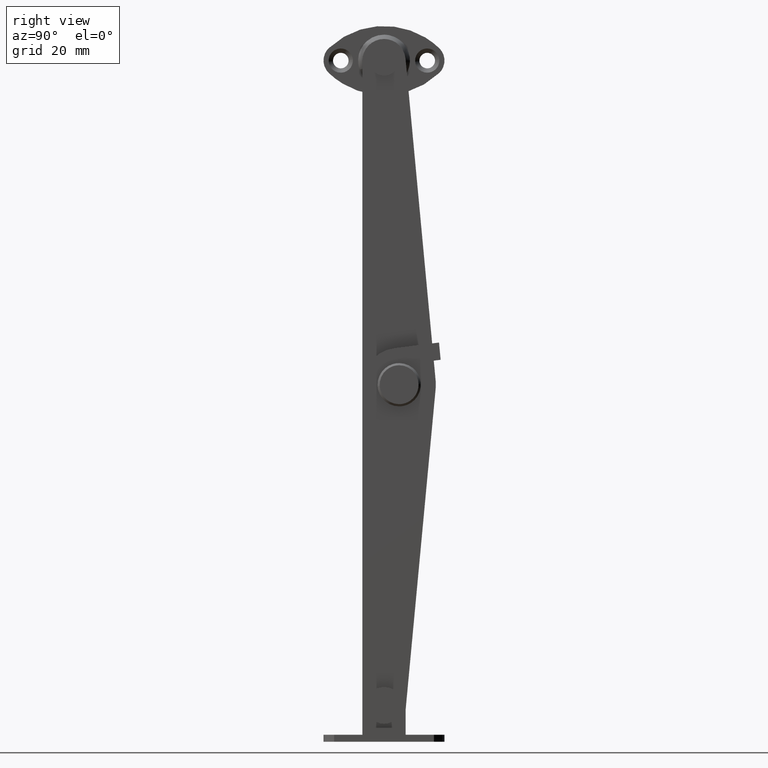
[diagram: clean part render]
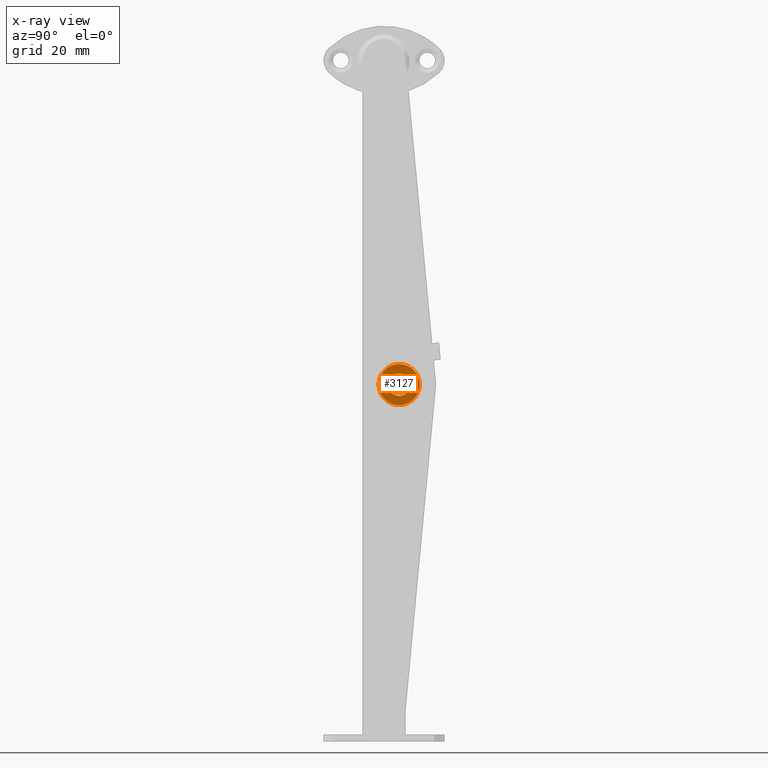
[diagram: x-ray — body ghosted, one internal face saturated and labeled with its STEP entity id]
A machine part, right view, then the same camera in x-ray: the body is ghosted and one INTERNAL B-rep face — a face not visible from any outside direction — is saturated and labeled: STEP entity #3127.
In plain terms, the highlighted face is a freeform B-spline surface patch.
Its self-contained STEP definition (entity closure, byte-faithful):
#2370=CARTESIAN_POINT('',(3.599991000000080,-2.581824766095675,-0.306889030717961));
#2371=VERTEX_POINT('',#2370);
#2372=CARTESIAN_POINT('',(3.599991000000080,0.0,2.600000000000000));
#2373=VERTEX_POINT('',#2372);
#2374=CARTESIAN_POINT('',(3.599991000000081,-2.581824766095676,-0.306889030717961));
#2375=CARTESIAN_POINT('',(3.599991000000080,-2.600000000000000,-0.153982731923245));
#2376=CARTESIAN_POINT('',(3.599991000000080,-2.600000000000000,0.0));
#2377=CARTESIAN_POINT('',(3.599991000000080,-2.600000000000001,2.600000000000001));
#2378=CARTESIAN_POINT('',(3.599991000000080,0.0,2.600000000000000));
#2386=(BOUNDED_CURVE()B_SPLINE_CURVE(2,(#2374,#2375,#2376,#2377,#2378),.UNSPECIFIED.,.F.,.U.)B_SPLINE_CURVE_WITH_KNOTS((3,2,3),(0.229562470817380,0.250000000000000,0.500000000000000),.UNSPECIFIED.)CURVE()GEOMETRIC_REPRESENTATION_ITEM()RATIONAL_B_SPLINE_CURVE((0.956026748899178,0.976055945172434,1.0,0.707106781186548,1.0))REPRESENTATION_ITEM(''));
#2387=EDGE_CURVE('',#2371,#2373,#2386,.T.);
#2428=CARTESIAN_POINT('',(3.599991000000080,2.595150475889329,0.158726202913659));
#2429=VERTEX_POINT('',#2428);
#2435=CARTESIAN_POINT('',(3.599991000000080,0.0,2.600000000000000));
#2436=CARTESIAN_POINT('',(3.599991000000080,2.445835773722483,2.599999999999999));
#2437=CARTESIAN_POINT('',(3.599991000000080,2.595150475889329,0.158726202913659));
#2445=(BOUNDED_CURVE()B_SPLINE_CURVE(2,(#2435,#2436,#2437),.UNSPECIFIED.,.F.,.U.)B_SPLINE_CURVE_WITH_KNOTS((3,3),(0.500000000000000,0.739332962225609),.UNSPECIFIED.)CURVE()GEOMETRIC_REPRESENTATION_ITEM()RATIONAL_B_SPLINE_CURVE((1.0,0.719603993302332,0.976072041638141))REPRESENTATION_ITEM(''));
#2446=EDGE_CURVE('',#2373,#2429,#2445,.T.);
#2469=CARTESIAN_POINT('',(3.599991000000080,0.0,-2.600000000000000));
#2470=VERTEX_POINT('',#2469);
#2471=CARTESIAN_POINT('',(3.599991000000080,0.0,-2.600000000000000));
#2472=CARTESIAN_POINT('',(3.599991000000080,-2.309253730345034,-2.600000000000001));
#2473=CARTESIAN_POINT('',(3.599991000000080,-2.581824766095675,-0.306889030717961));
#2481=(BOUNDED_CURVE()B_SPLINE_CURVE(2,(#2471,#2472,#2473),.UNSPECIFIED.,.F.,.U.)B_SPLINE_CURVE_WITH_KNOTS((3,3),(0.0,0.229562470817380),.UNSPECIFIED.)CURVE()GEOMETRIC_REPRESENTATION_ITEM()RATIONAL_B_SPLINE_CURVE((1.0,0.731050836014113,0.956026748899177))REPRESENTATION_ITEM(''));
#2482=EDGE_CURVE('',#2470,#2371,#2481,.T.);
#2484=CARTESIAN_POINT('',(3.599991000000080,2.595150475889329,0.158726202913659));
#2485=CARTESIAN_POINT('',(3.599991000000079,2.600000000000000,0.079437184699707));
#2486=CARTESIAN_POINT('',(3.599991000000080,2.600000000000000,0.0));
#2487=CARTESIAN_POINT('',(3.599991000000080,2.600000000000001,-2.600000000000001));
#2488=CARTESIAN_POINT('',(3.599991000000080,0.0,-2.600000000000000));
#2496=(BOUNDED_CURVE()B_SPLINE_CURVE(2,(#2484,#2485,#2486,#2487,#2488),.UNSPECIFIED.,.F.,.U.)B_SPLINE_CURVE_WITH_KNOTS((3,2,3),(0.739332962225608,0.750000000000000,1.0),.UNSPECIFIED.)CURVE()GEOMETRIC_REPRESENTATION_ITEM()RATIONAL_B_SPLINE_CURVE((0.976072041638139,0.987502787884215,1.0,0.707106781186548,1.0))REPRESENTATION_ITEM(''));
#2497=EDGE_CURVE('',#2429,#2470,#2496,.T.);
#2972=CARTESIAN_POINT('',(3.599990999683962,3.289195168131739,-3.454156196772931));
#2973=VERTEX_POINT('',#2972);
#2987=CARTESIAN_POINT('',(3.599991000000100,0.0,-4.769695954297490));
#2988=VERTEX_POINT('',#2987);
#2989=CARTESIAN_POINT('',(3.599990999683962,3.289195168131739,-3.454156196772930));
#2990=CARTESIAN_POINT('',(3.599991000000100,1.907677876644792,-4.769695954297490));
#2991=CARTESIAN_POINT('',(3.599991000000100,0.0,-4.769695954297490));
#2999=(BOUNDED_CURVE()B_SPLINE_CURVE(2,(#2989,#2990,#2991),.UNSPECIFIED.,.F.,.U.)B_SPLINE_CURVE_WITH_KNOTS((3,3),(0.378690594327381,0.500000000000000),.UNSPECIFIED.)CURVE()GEOMETRIC_REPRESENTATION_ITEM()RATIONAL_B_SPLINE_CURVE((0.853681049733423,0.857877190800799,1.0))REPRESENTATION_ITEM(''));
#3000=EDGE_CURVE('',#2973,#2988,#2999,.T.);
#3002=CARTESIAN_POINT('',(3.599991000000100,0.0,4.769695954297490));
#3003=VERTEX_POINT('',#3002);
#3004=CARTESIAN_POINT('',(3.599991000000100,0.0,-4.769695954297490));
#3005=CARTESIAN_POINT('',(3.599991000000100,-4.769695954297491,-4.769695954297491));
#3006=CARTESIAN_POINT('',(3.599991000000100,-4.769695954297490,0.0));
#3007=CARTESIAN_POINT('',(3.599991000000100,-4.769695954297491,4.769695954297491));
#3008=CARTESIAN_POINT('',(3.599991000000100,0.0,4.769695954297490));
#3016=(BOUNDED_CURVE()B_SPLINE_CURVE(2,(#3004,#3005,#3006,#3007,#3008),.UNSPECIFIED.,.F.,.U.)B_SPLINE_CURVE_WITH_KNOTS((3,2,3),(0.500000000000000,0.750000000000000,1.0),.UNSPECIFIED.)CURVE()GEOMETRIC_REPRESENTATION_ITEM()RATIONAL_B_SPLINE_CURVE((1.0,0.707106781186548,1.0,0.707106781186548,1.0))REPRESENTATION_ITEM(''));
#3017=EDGE_CURVE('',#2988,#3003,#3016,.T.);
#3019=CARTESIAN_POINT('',(3.599990999665994,3.636618992743273,3.086260230361549));
#3020=VERTEX_POINT('',#3019);
#3021=CARTESIAN_POINT('',(3.599991000000100,0.0,4.769695954297490));
#3022=CARTESIAN_POINT('',(3.599991000000099,2.207951061826470,4.769695954297490));
#3023=CARTESIAN_POINT('',(3.599990999665995,3.636618992743274,3.086260230361549));
#3031=(BOUNDED_CURVE()B_SPLINE_CURVE(2,(#3021,#3022,#3023),.UNSPECIFIED.,.F.,.U.)B_SPLINE_CURVE_WITH_KNOTS((3,3),(0.0,0.137331629804617),.UNSPECIFIED.)CURVE()GEOMETRIC_REPRESENTATION_ITEM()RATIONAL_B_SPLINE_CURVE((1.0,0.839105987606513,0.854978670795441))REPRESENTATION_ITEM(''));
#3032=EDGE_CURVE('',#3003,#3020,#3031,.T.);
#3073=CARTESIAN_POINT('',(3.599990999665994,3.636618992743274,3.086260230361548));
#3074=CARTESIAN_POINT('',(3.599991000000101,4.769695954297490,1.751126736753263));
#3075=CARTESIAN_POINT('',(3.599991000000100,4.769695954297490,0.0));
#3076=CARTESIAN_POINT('',(3.599991000000101,4.769695954297490,-2.044360012142681));
#3077=CARTESIAN_POINT('',(3.599990999683962,3.289195168131740,-3.454156196772931));
#3085=(BOUNDED_CURVE()B_SPLINE_CURVE(2,(#3073,#3074,#3075,#3076,#3077),.UNSPECIFIED.,.F.,.U.)B_SPLINE_CURVE_WITH_KNOTS((3,2,3),(0.137331629804617,0.250000000000000,0.378690594327382),.UNSPECIFIED.)CURVE()GEOMETRIC_REPRESENTATION_ITEM()RATIONAL_B_SPLINE_CURVE((0.854978670795441,0.868000793580035,1.0,0.849229590385748,0.853681049733423))REPRESENTATION_ITEM(''));
#3086=EDGE_CURVE('',#3020,#2973,#3085,.T.);
#3110=CARTESIAN_POINT('',(3.599991000000100,-5.246187563996155,-5.246188348463237));
#3111=CARTESIAN_POINT('',(3.599991000000100,-5.246187563996155,5.246188092596808));
#3112=CARTESIAN_POINT('',(3.599991000000100,5.246171602537735,-5.246188348463237));
#3113=CARTESIAN_POINT('',(3.599991000000100,5.246171602537735,5.246188092596808));
#3114=B_SPLINE_SURFACE_WITH_KNOTS('',1,1,((#3110,#3112),(#3111,#3113)),.UNSPECIFIED.,.F.,.F.,.U.,(2,2),(2,2),(0.0,10.492376441060051),(0.0,10.492359166533889),.UNSPECIFIED.);
#3115=ORIENTED_EDGE('',*,*,#3017,.F.);
#3116=ORIENTED_EDGE('',*,*,#3000,.F.);
#3117=ORIENTED_EDGE('',*,*,#3086,.F.);
#3118=ORIENTED_EDGE('',*,*,#3032,.F.);
#3119=EDGE_LOOP('',(#3115,#3116,#3117,#3118));
#3120=FACE_OUTER_BOUND('',#3119,.T.);
#3121=ORIENTED_EDGE('',*,*,#2446,.T.);
#3122=ORIENTED_EDGE('',*,*,#2497,.T.);
#3123=ORIENTED_EDGE('',*,*,#2482,.T.);
#3124=ORIENTED_EDGE('',*,*,#2387,.T.);
#3125=EDGE_LOOP('',(#3121,#3122,#3123,#3124));
#3126=FACE_BOUND('',#3125,.T.);
#3127=ADVANCED_FACE('',(#3120,#3126),#3114,.F.);